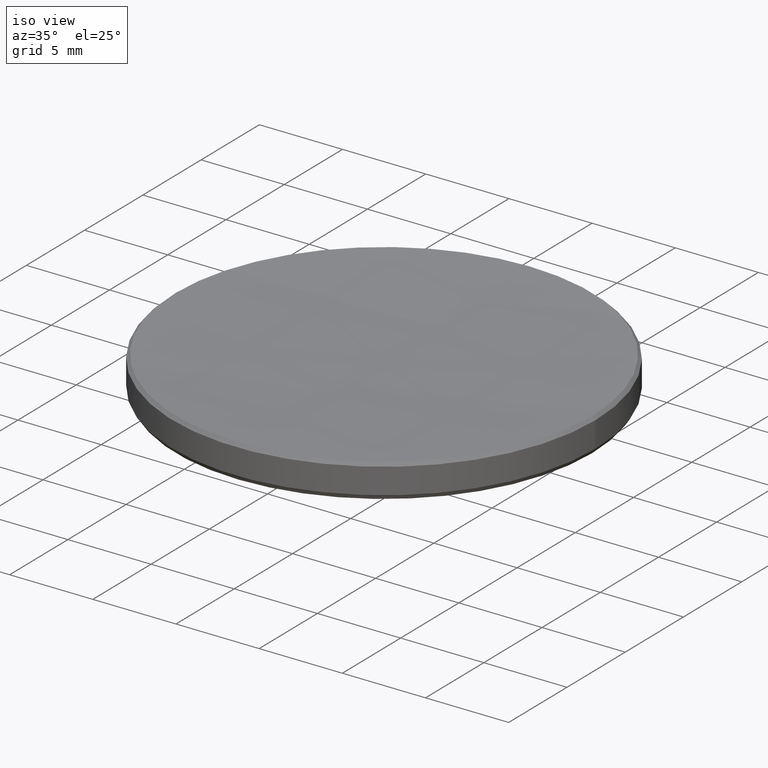
[diagram: clean part render]
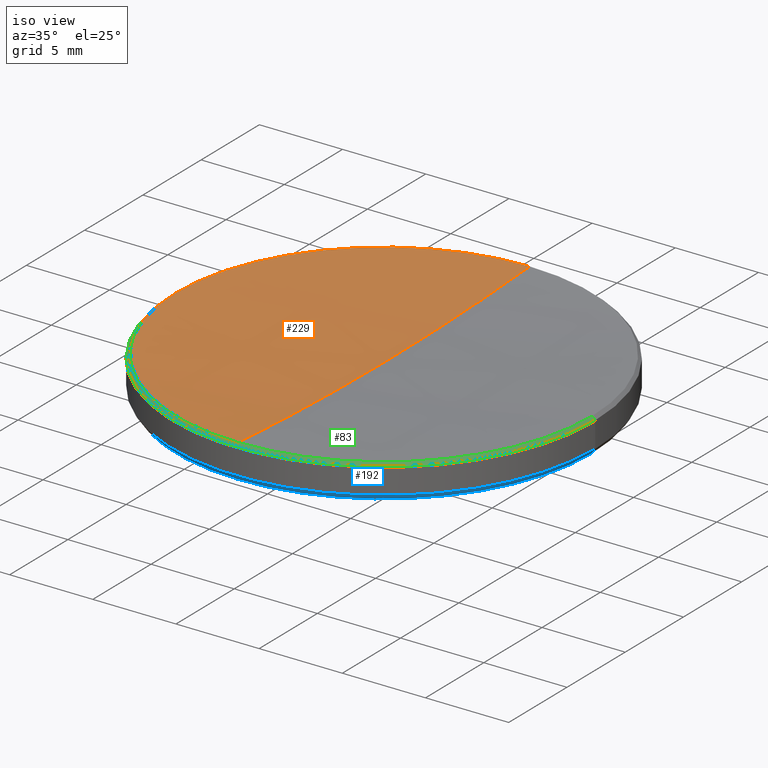
[diagram: same view with three faces highlighted in distinct colors, each labeled with its STEP entity id]
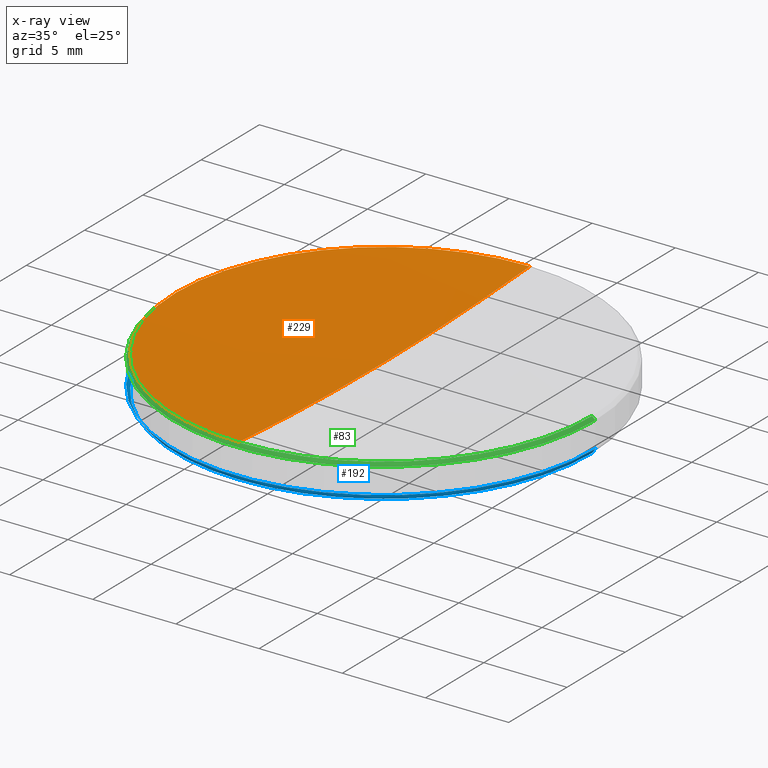
[diagram: x-ray of the same camera — body ghosted, the three highlighted faces saturated]
A machine part, iso view with three faces highlighted in distinct colors.
The next image is the same camera in x-ray (body ghosted, the three faces saturated) — at least one of them is partly hidden behind the body in this view.
Their STEP definitions:

[orange] entity #229 — the highlighted spherical surface has radius 182.19 mm.
#7 = DIRECTION ( 'NONE',  ( -1.224646799147352961E-16, -1.000000000000000000, 0.000000000000000000 ) ) ;
#10 = AXIS2_PLACEMENT_3D ( 'NONE', #252, #99, #126 ) ;
#37 = AXIS2_PLACEMENT_3D ( 'NONE', #100, #54, #253 ) ;
#51 = DIRECTION ( 'NONE',  ( -0.000000000000000000, -0.000000000000000000, 1.000000000000000000 ) ) ;
#54 = DIRECTION ( 'NONE',  ( -1.000000000000000000, 0.000000000000000000, 0.000000000000000000 ) ) ;
#57 = VERTEX_POINT ( 'NONE', #233 ) ;
#76 = DIRECTION ( 'NONE',  ( -1.000000000000000000, 1.224646799147353207E-16, 0.000000000000000000 ) ) ;
#84 = FACE_OUTER_BOUND ( 'NONE', #87, .T. ) ;
#87 = EDGE_LOOP ( 'NONE', ( #120, #195, #272, #129 ) ) ;
#96 = VERTEX_POINT ( 'NONE', #194 ) ;
#99 = DIRECTION ( 'NONE',  ( -0.000000000000000000, -0.000000000000000000, 1.000000000000000000 ) ) ;
#100 = CARTESIAN_POINT ( 'NONE',  ( 0.000000000000000000, 0.000000000000000000, 187.7468186791724918 ) ) ;
#110 = AXIS2_PLACEMENT_3D ( 'NONE', #323, #307, #297 ) ;
#119 = EDGE_CURVE ( 'NONE', #243, #57, #300, .T. ) ;
#120 = ORIENTED_EDGE ( 'NONE', *, *, #123, .F. ) ;
#123 = EDGE_CURVE ( 'NONE', #96, #57, #131, .T. ) ;
#124 = CIRCLE ( 'NONE', #110, 182.1899999999999977 ) ;
#126 = DIRECTION ( 'NONE',  ( 1.000000000000000000, 0.000000000000000000, 0.000000000000000000 ) ) ;
#129 = ORIENTED_EDGE ( 'NONE', *, *, #119, .T. ) ;
#131 = CIRCLE ( 'NONE', #312, 182.1899999999999977 ) ;
#176 = VERTEX_POINT ( 'NONE', #292 ) ;
#179 = SPHERICAL_SURFACE ( 'NONE', #37, 182.1899999999999977 ) ;
#194 = CARTESIAN_POINT ( 'NONE',  ( 0.000000000000000000, 1.115592001683281265E-14, 5.556818679172486952 ) ) ;
#195 = ORIENTED_EDGE ( 'NONE', *, *, #316, .T. ) ;
#197 = CARTESIAN_POINT ( 'NONE',  ( 0.000000000000000000, 0.000000000000000000, 187.7468186791724918 ) ) ;
#200 = CARTESIAN_POINT ( 'NONE',  ( -12.51297231911478569, 0.000000000000000000, 5.987027680885187664 ) ) ;
#229 = ADVANCED_FACE ( 'NONE', ( #84 ), #179, .F. ) ;
#233 = CARTESIAN_POINT ( 'NONE',  ( -1.532397149842306047E-15, -12.51297231911454411, 5.987027680885187664 ) ) ;
#243 = VERTEX_POINT ( 'NONE', #200 ) ;
#251 = DIRECTION ( 'NONE',  ( 1.000000000000000000, 0.000000000000000000, 0.000000000000000000 ) ) ;
#252 = CARTESIAN_POINT ( 'NONE',  ( 0.000000000000000000, 0.000000000000000000, 5.987027680885187664 ) ) ;
#253 = DIRECTION ( 'NONE',  ( 0.000000000000000000, 1.000000000000000000, 0.000000000000000000 ) ) ;
#255 = AXIS2_PLACEMENT_3D ( 'NONE', #278, #51, #251 ) ;
#272 = ORIENTED_EDGE ( 'NONE', *, *, #282, .T. ) ;
#278 = CARTESIAN_POINT ( 'NONE',  ( 0.000000000000000000, 0.000000000000000000, 5.987027680885187664 ) ) ;
#282 = EDGE_CURVE ( 'NONE', #176, #243, #314, .T. ) ;
#292 = CARTESIAN_POINT ( 'NONE',  ( 0.000000000000000000, 12.51297231911454411, 5.987027680885187664 ) ) ;
#297 = DIRECTION ( 'NONE',  ( 0.000000000000000000, 0.000000000000000000, -1.000000000000000000 ) ) ;
#300 = CIRCLE ( 'NONE', #10, 12.51297231911478569 ) ;
#307 = DIRECTION ( 'NONE',  ( 1.000000000000000000, 0.000000000000000000, 0.000000000000000000 ) ) ;
#312 = AXIS2_PLACEMENT_3D ( 'NONE', #197, #76, #7 ) ;
#314 = CIRCLE ( 'NONE', #255, 12.51297231911478569 ) ;
#316 = EDGE_CURVE ( 'NONE', #96, #176, #124, .T. ) ;
#323 = CARTESIAN_POINT ( 'NONE',  ( 0.000000000000000000, 0.000000000000000000, 187.7468186791724918 ) ) ;

[blue] entity #192 — the highlighted conical surface has half-angle 33.931 deg.
#2 = AXIS2_PLACEMENT_3D ( 'NONE', #40, #325, #13 ) ;
#13 = DIRECTION ( 'NONE',  ( -1.000000000000000000, 0.000000000000000000, 0.000000000000000000 ) ) ;
#19 = CARTESIAN_POINT ( 'NONE',  ( 0.000000000000000000, 0.000000000000000000, 4.253353967830220128 ) ) ;
#21 = EDGE_LOOP ( 'NONE', ( #276, #222, #330, #190, #125 ) ) ;
#22 = AXIS2_PLACEMENT_3D ( 'NONE', #33, #134, #209 ) ;
#28 = EDGE_CURVE ( 'NONE', #245, #302, #105, .T. ) ;
#33 = CARTESIAN_POINT ( 'NONE',  ( 0.000000000000000000, 0.000000000000000000, 3.961956115965656444 ) ) ;
#40 = CARTESIAN_POINT ( 'NONE',  ( 0.000000000000000000, 0.000000000000000000, 4.253353967830220128 ) ) ;
#48 = CONICAL_SURFACE ( 'NONE', #232, 12.69999999999999929, 0.5922108289621466071 ) ;
#62 = DIRECTION ( 'NONE',  ( 0.5581967294551084535, 0.000000000000000000, 0.8297086303188730971 ) ) ;
#64 = VECTOR ( 'NONE', #62, 1000.000000000000000 ) ;
#74 = DIRECTION ( 'NONE',  ( -0.5581967294551084535, 6.835938380217195988E-17, 0.8297086303188730971 ) ) ;
#75 = EDGE_CURVE ( 'NONE', #248, #181, #201, .T. ) ;
#93 = DIRECTION ( 'NONE',  ( 1.000000000000000000, 0.000000000000000000, 0.000000000000000000 ) ) ;
#105 = CIRCLE ( 'NONE', #22, 12.50395849586555030 ) ;
#111 = LINE ( 'NONE', #211, #64 ) ;
#125 = ORIENTED_EDGE ( 'NONE', *, *, #177, .F. ) ;
#134 = DIRECTION ( 'NONE',  ( 0.000000000000000000, 0.000000000000000000, -1.000000000000000000 ) ) ;
#140 = CIRCLE ( 'NONE', #2, 12.69999999999999929 ) ;
#141 = CARTESIAN_POINT ( 'NONE',  ( -12.69999999999999929, 0.000000000000000000, 4.253353967830220128 ) ) ;
#166 = VERTEX_POINT ( 'NONE', #168 ) ;
#168 = CARTESIAN_POINT ( 'NONE',  ( 12.69999999999999929, 1.555301434917138433E-15, 4.253353967830220128 ) ) ;
#170 = CIRCLE ( 'NONE', #226, 12.50395849586555030 ) ;
#177 = EDGE_CURVE ( 'NONE', #181, #166, #140, .T. ) ;
#181 = VERTEX_POINT ( 'NONE', #141 ) ;
#185 = DIRECTION ( 'NONE',  ( 0.000000000000000000, 0.000000000000000000, -1.000000000000000000 ) ) ;
#190 = ORIENTED_EDGE ( 'NONE', *, *, #213, .T. ) ;
#192 = ADVANCED_FACE ( 'NONE', ( #299 ), #48, .T. ) ;
#193 = CARTESIAN_POINT ( 'NONE',  ( 0.000000000000000000, 0.000000000000000000, 3.961956115965656444 ) ) ;
#198 = EDGE_CURVE ( 'NONE', #302, #248, #170, .T. ) ;
#201 = LINE ( 'NONE', #280, #237 ) ;
#202 = CARTESIAN_POINT ( 'NONE',  ( -12.50395849586555030, 1.543297354890224221E-15, 3.961956115965656444 ) ) ;
#209 = DIRECTION ( 'NONE',  ( 1.000000000000000000, 0.000000000000000000, 0.000000000000000000 ) ) ;
#211 = CARTESIAN_POINT ( 'NONE',  ( 12.69999999999999929, 0.000000000000000000, 4.253353967830220128 ) ) ;
#213 = EDGE_CURVE ( 'NONE', #245, #166, #111, .T. ) ;
#219 = DIRECTION ( 'NONE',  ( -0.000000000000000000, -0.000000000000000000, 1.000000000000000000 ) ) ;
#222 = ORIENTED_EDGE ( 'NONE', *, *, #198, .F. ) ;
#226 = AXIS2_PLACEMENT_3D ( 'NONE', #193, #185, #262 ) ;
#232 = AXIS2_PLACEMENT_3D ( 'NONE', #19, #219, #93 ) ;
#237 = VECTOR ( 'NONE', #74, 1000.000000000000000 ) ;
#245 = VERTEX_POINT ( 'NONE', #309 ) ;
#248 = VERTEX_POINT ( 'NONE', #202 ) ;
#262 = DIRECTION ( 'NONE',  ( 1.000000000000000000, 0.000000000000000000, 0.000000000000000000 ) ) ;
#266 = CARTESIAN_POINT ( 'NONE',  ( -1.531293274863309419E-15, -12.50395849586554675, 3.961956115965656444 ) ) ;
#276 = ORIENTED_EDGE ( 'NONE', *, *, #75, .F. ) ;
#280 = CARTESIAN_POINT ( 'NONE',  ( -12.69999999999999929, 1.555301434917138433E-15, 4.253353967830220128 ) ) ;
#299 = FACE_OUTER_BOUND ( 'NONE', #21, .T. ) ;
#302 = VERTEX_POINT ( 'NONE', #266 ) ;
#309 = CARTESIAN_POINT ( 'NONE',  ( 12.50395849586555030, 0.000000000000000000, 3.961956115965656444 ) ) ;
#325 = DIRECTION ( 'NONE',  ( -0.000000000000000000, -0.000000000000000000, 1.000000000000000000 ) ) ;
#330 = ORIENTED_EDGE ( 'NONE', *, *, #28, .F. ) ;

[green] entity #83 — the highlighted conical surface has half-angle 45 deg.
#1 = DIRECTION ( 'NONE',  ( -0.000000000000000000, -0.000000000000000000, 1.000000000000000000 ) ) ;
#10 = AXIS2_PLACEMENT_3D ( 'NONE', #252, #99, #126 ) ;
#15 = ORIENTED_EDGE ( 'NONE', *, *, #234, .F. ) ;
#20 = VERTEX_POINT ( 'NONE', #259 ) ;
#24 = DIRECTION ( 'NONE',  ( 0.000000000000000000, 0.000000000000000000, -1.000000000000000000 ) ) ;
#26 = ORIENTED_EDGE ( 'NONE', *, *, #303, .F. ) ;
#27 = CIRCLE ( 'NONE', #203, 12.51297231911478569 ) ;
#39 = LINE ( 'NONE', #137, #180 ) ;
#46 = DIRECTION ( 'NONE',  ( -1.000000000000000000, 0.000000000000000000, 0.000000000000000000 ) ) ;
#52 = CARTESIAN_POINT ( 'NONE',  ( -12.69999999999999929, 0.000000000000000000, 5.800000000000027356 ) ) ;
#57 = VERTEX_POINT ( 'NONE', #233 ) ;
#63 = CONICAL_SURFACE ( 'NONE', #294, 12.51297231911478214, 0.7853981633974530530 ) ;
#80 = EDGE_LOOP ( 'NONE', ( #26, #15, #173, #169, #236 ) ) ;
#83 = ADVANCED_FACE ( 'NONE', ( #247 ), #63, .T. ) ;
#99 = DIRECTION ( 'NONE',  ( -0.000000000000000000, -0.000000000000000000, 1.000000000000000000 ) ) ;
#102 = DIRECTION ( 'NONE',  ( 1.000000000000000000, 0.000000000000000000, 0.000000000000000000 ) ) ;
#106 = VERTEX_POINT ( 'NONE', #52 ) ;
#112 = DIRECTION ( 'NONE',  ( 0.000000000000000000, 0.000000000000000000, -1.000000000000000000 ) ) ;
#119 = EDGE_CURVE ( 'NONE', #243, #57, #300, .T. ) ;
#122 = CIRCLE ( 'NONE', #313, 12.69999999999999929 ) ;
#126 = DIRECTION ( 'NONE',  ( 1.000000000000000000, 0.000000000000000000, 0.000000000000000000 ) ) ;
#137 = CARTESIAN_POINT ( 'NONE',  ( 12.51297231911478214, 1.532397149842335037E-15, 5.987027680885242731 ) ) ;
#148 = CARTESIAN_POINT ( 'NONE',  ( 0.000000000000000000, 0.000000000000000000, 5.987027680885187664 ) ) ;
#152 = VECTOR ( 'NONE', #164, 1000.000000000000114 ) ;
#162 = CARTESIAN_POINT ( 'NONE',  ( -12.51297231911478214, 0.000000000000000000, 5.987027680885242731 ) ) ;
#164 = DIRECTION ( 'NONE',  ( -0.7071067811865507924, 0.000000000000000000, -0.7071067811865441310 ) ) ;
#169 = ORIENTED_EDGE ( 'NONE', *, *, #291, .T. ) ;
#171 = EDGE_CURVE ( 'NONE', #217, #106, #122, .T. ) ;
#173 = ORIENTED_EDGE ( 'NONE', *, *, #119, .F. ) ;
#180 = VECTOR ( 'NONE', #241, 1000.000000000000114 ) ;
#186 = LINE ( 'NONE', #162, #152 ) ;
#200 = CARTESIAN_POINT ( 'NONE',  ( -12.51297231911478569, 0.000000000000000000, 5.987027680885187664 ) ) ;
#203 = AXIS2_PLACEMENT_3D ( 'NONE', #148, #1, #102 ) ;
#217 = VERTEX_POINT ( 'NONE', #320 ) ;
#233 = CARTESIAN_POINT ( 'NONE',  ( -1.532397149842306047E-15, -12.51297231911454411, 5.987027680885187664 ) ) ;
#234 = EDGE_CURVE ( 'NONE', #57, #20, #27, .T. ) ;
#236 = ORIENTED_EDGE ( 'NONE', *, *, #171, .F. ) ;
#238 = DIRECTION ( 'NONE',  ( 1.000000000000000000, 0.000000000000000000, 0.000000000000000000 ) ) ;
#241 = DIRECTION ( 'NONE',  ( 0.7071067811865507924, 8.659560562354974766E-17, -0.7071067811865441310 ) ) ;
#243 = VERTEX_POINT ( 'NONE', #200 ) ;
#247 = FACE_OUTER_BOUND ( 'NONE', #80, .T. ) ;
#252 = CARTESIAN_POINT ( 'NONE',  ( 0.000000000000000000, 0.000000000000000000, 5.987027680885187664 ) ) ;
#259 = CARTESIAN_POINT ( 'NONE',  ( 12.51297231911478569, 1.543849292379736932E-15, 5.987027680885187664 ) ) ;
#267 = CARTESIAN_POINT ( 'NONE',  ( 0.000000000000000000, 0.000000000000000000, 5.800000000000027356 ) ) ;
#291 = EDGE_CURVE ( 'NONE', #243, #106, #186, .T. ) ;
#294 = AXIS2_PLACEMENT_3D ( 'NONE', #332, #24, #46 ) ;
#300 = CIRCLE ( 'NONE', #10, 12.51297231911478569 ) ;
#303 = EDGE_CURVE ( 'NONE', #20, #217, #39, .T. ) ;
#313 = AXIS2_PLACEMENT_3D ( 'NONE', #267, #112, #238 ) ;
#320 = CARTESIAN_POINT ( 'NONE',  ( 12.69999999999999929, 1.555301434917138433E-15, 5.800000000000027356 ) ) ;
#332 = CARTESIAN_POINT ( 'NONE',  ( 0.000000000000000000, 0.000000000000000000, 5.987027680885242731 ) ) ;